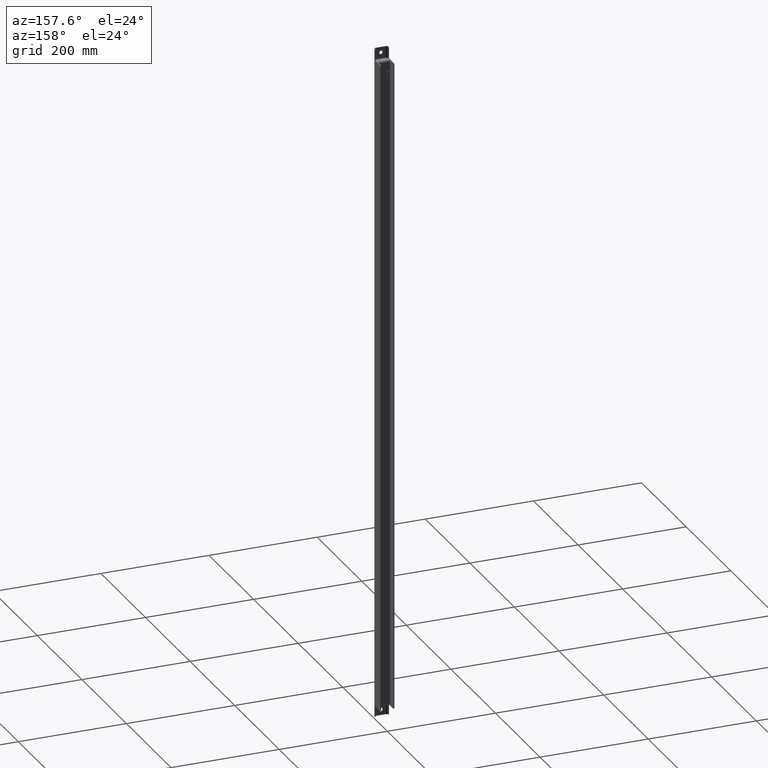
[diagram: clean part render]
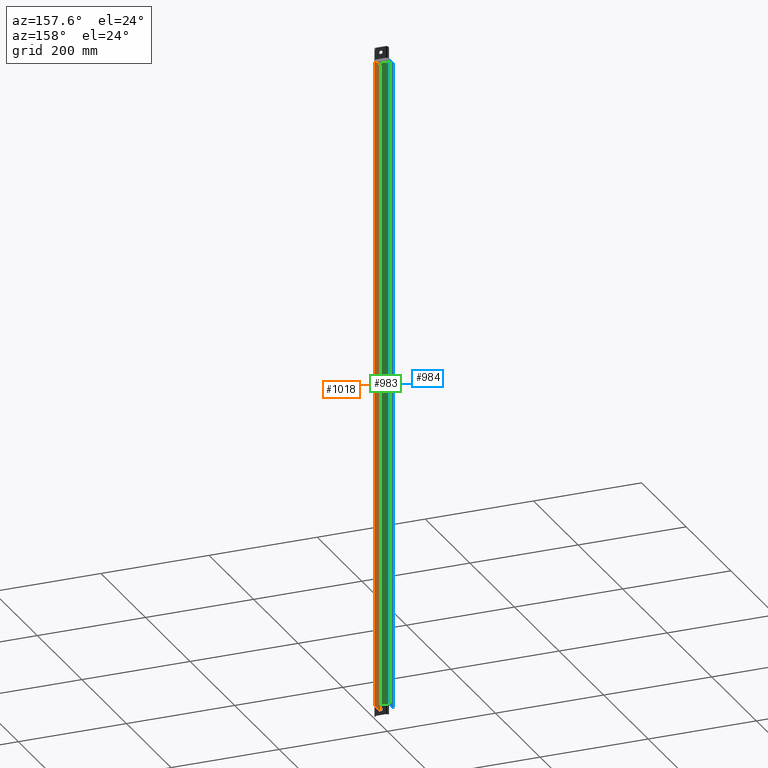
[diagram: same view with three faces highlighted in distinct colors, each labeled with its STEP entity id]
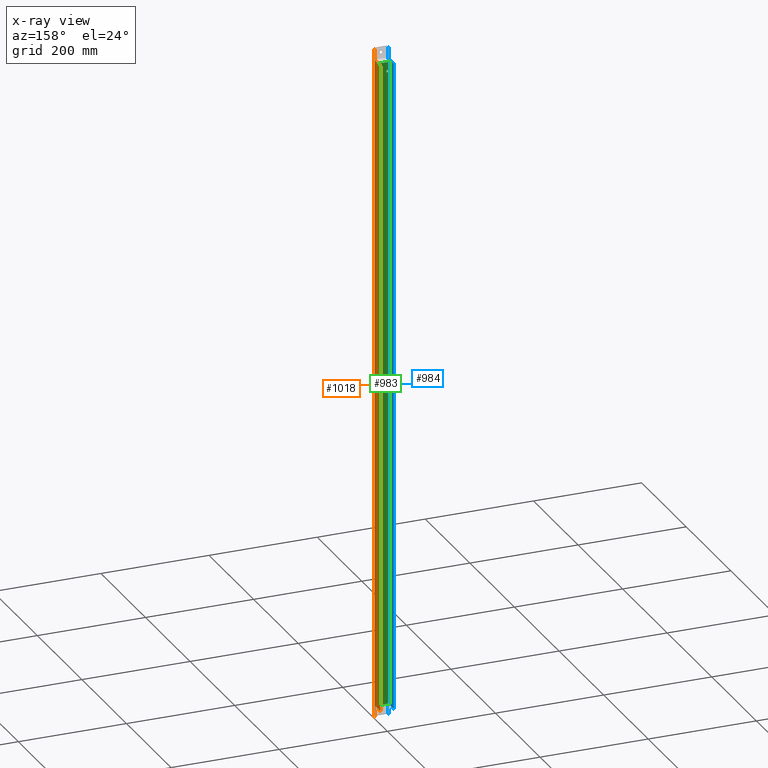
[diagram: x-ray of the same camera — body ghosted, the three highlighted faces saturated]
A machine part, auxiliary view with three faces highlighted in distinct colors.
The next image is the same camera in x-ray (body ghosted, the three faces saturated) — at least one of them is partly hidden behind the body in this view.
Their STEP definitions:

[orange] entity #1018 — the highlighted planar face has unit normal (1, -0, 0).
#90=LINE('',#1720,#178);
#95=LINE('',#1734,#183);
#96=LINE('',#1738,#184);
#97=LINE('',#1742,#185);
#98=LINE('',#1746,#186);
#99=LINE('',#1750,#187);
#178=VECTOR('',#1410,1000.);
#183=VECTOR('',#1429,1000.);
#184=VECTOR('',#1432,1000.);
#185=VECTOR('',#1435,1000.);
#186=VECTOR('',#1438,1000.);
#187=VECTOR('',#1441,1000.);
#456=ORIENTED_EDGE('',*,*,#632,.T.);
#457=ORIENTED_EDGE('',*,*,#635,.T.);
#458=ORIENTED_EDGE('',*,*,#639,.T.);
#459=ORIENTED_EDGE('',*,*,#640,.T.);
#460=ORIENTED_EDGE('',*,*,#641,.T.);
#461=ORIENTED_EDGE('',*,*,#642,.T.);
#462=ORIENTED_EDGE('',*,*,#643,.F.);
#463=ORIENTED_EDGE('',*,*,#644,.T.);
#464=ORIENTED_EDGE('',*,*,#645,.T.);
#465=ORIENTED_EDGE('',*,*,#646,.T.);
#466=ORIENTED_EDGE('',*,*,#647,.T.);
#467=ORIENTED_EDGE('',*,*,#637,.T.);
#632=EDGE_CURVE('',#740,#741,#90,.T.);
#635=EDGE_CURVE('',#741,#742,#802,.T.);
#637=EDGE_CURVE('',#743,#740,#803,.T.);
#639=EDGE_CURVE('',#742,#744,#95,.T.);
#640=EDGE_CURVE('',#744,#745,#804,.T.);
#641=EDGE_CURVE('',#745,#746,#96,.T.);
#642=EDGE_CURVE('',#746,#747,#805,.T.);
#643=EDGE_CURVE('',#748,#747,#97,.T.);
#644=EDGE_CURVE('',#748,#749,#806,.T.);
#645=EDGE_CURVE('',#749,#750,#98,.T.);
#646=EDGE_CURVE('',#750,#751,#807,.T.);
#647=EDGE_CURVE('',#751,#743,#99,.T.);
#740=VERTEX_POINT('',#1717);
#741=VERTEX_POINT('',#1719);
#742=VERTEX_POINT('',#1727);
#743=VERTEX_POINT('',#1731);
#744=VERTEX_POINT('',#1735);
#745=VERTEX_POINT('',#1737);
#746=VERTEX_POINT('',#1739);
#747=VERTEX_POINT('',#1741);
#748=VERTEX_POINT('',#1743);
#749=VERTEX_POINT('',#1745);
#750=VERTEX_POINT('',#1747);
#751=VERTEX_POINT('',#1749);
#802=CIRCLE('',#1137,2.);
#803=CIRCLE('',#1139,2.);
#804=CIRCLE('',#1141,2.);
#805=CIRCLE('',#1142,2.);
#806=CIRCLE('',#1143,2.);
#807=CIRCLE('',#1144,2.);
#864=EDGE_LOOP('',(#456,#457,#458,#459,#460,#461,#462,#463,#464,#465,#466,
#467));
#932=FACE_BOUND('',#864,.T.);
#967=PLANE('',#1140);
#1018=ADVANCED_FACE('',(#932),#967,.T.);
#1137=AXIS2_PLACEMENT_3D('',#1726,#1419,#1420);
#1139=AXIS2_PLACEMENT_3D('',#1730,#1424,#1425);
#1140=AXIS2_PLACEMENT_3D('',#1733,#1427,#1428);
#1141=AXIS2_PLACEMENT_3D('',#1736,#1430,#1431);
#1142=AXIS2_PLACEMENT_3D('',#1740,#1433,#1434);
#1143=AXIS2_PLACEMENT_3D('',#1744,#1436,#1437);
#1144=AXIS2_PLACEMENT_3D('',#1748,#1439,#1440);
#1410=DIRECTION('',(8.93686180177302E-17,1.31838984174237E-16,-1.));
#1419=DIRECTION('',(1.,-4.06163832661068E-16,8.93686180177302E-17));
#1420=DIRECTION('',(8.93686180177302E-17,1.66533453693773E-16,-1.));
#1424=DIRECTION('',(1.,-4.06163832661068E-16,8.93686180177302E-17));
#1425=DIRECTION('',(8.93686180177302E-17,1.66533453693773E-16,-1.));
#1427=DIRECTION('',(1.,-4.06163832661068E-16,8.93686180177302E-17));
#1428=DIRECTION('',(8.93686180177302E-17,1.66533453693773E-16,-1.));
#1429=DIRECTION('',(-8.93686180177302E-17,-1.66533453693773E-16,1.));
#1430=DIRECTION('',(-1.,4.06163832661068E-16,-8.93686180177302E-17));
#1431=DIRECTION('',(8.93686180177302E-17,1.66533453693773E-16,-1.));
#1432=DIRECTION('',(4.06163832661068E-16,1.,1.66533453693773E-16));
#1433=DIRECTION('',(1.,-4.06163832661068E-16,8.93686180177302E-17));
#1434=DIRECTION('',(8.93686180177302E-17,1.66533453693773E-16,-1.));
#1435=DIRECTION('',(8.93686180177302E-17,1.66533453693773E-16,-1.));
#1436=DIRECTION('',(1.,-4.06163832661068E-16,8.93686180177302E-17));
#1437=DIRECTION('',(8.93686180177302E-17,1.66533453693773E-16,-1.));
#1438=DIRECTION('',(-4.06163832661068E-16,-1.,-1.66533453693773E-16));
#1439=DIRECTION('',(-1.,4.06163832661068E-16,-8.93686180177302E-17));
#1440=DIRECTION('',(8.93686180177302E-17,1.66533453693773E-16,-1.));
#1441=DIRECTION('',(-8.93686180177302E-17,-4.2624633981144E-17,1.));
#1717=CARTESIAN_POINT('',(13.,-26.0000000000003,625.));
#1719=CARTESIAN_POINT('',(13.0000000000001,-25.9999999999999,-625.));
#1720=CARTESIAN_POINT('',(13.,-26.0000000000002,-2.28741647717006E-15));
#1726=CARTESIAN_POINT('',(13.0000000000001,-25.9999999999996,-623.));
#1727=CARTESIAN_POINT('',(13.0000000000001,-23.9999999999996,-623.));
#1730=CARTESIAN_POINT('',(13.,-26.0000000000002,623.));
#1731=CARTESIAN_POINT('',(13.,-24.0000000000002,623.));
#1733=CARTESIAN_POINT('',(13.,-28.5000000000002,-2.61701393760565E-15));
#1734=CARTESIAN_POINT('',(13.,-24.0000000000002,-250.));
#1735=CARTESIAN_POINT('',(13.0000000000001,-24.0000000000001,-606.));
#1736=CARTESIAN_POINT('',(13.0000000000001,-21.9999999999996,-606.));
#1737=CARTESIAN_POINT('',(13.0000000000001,-21.9999999999996,-604.));
#1738=CARTESIAN_POINT('',(13.0000000000001,-5.49999999999964,-604.));
#1739=CARTESIAN_POINT('',(12.9999999999999,-1.99999999999975,-604.));
#1740=CARTESIAN_POINT('',(12.9999999999999,-1.99999999999975,-602.));
#1741=CARTESIAN_POINT('',(12.9999999999999,-2.05058192648267E-13,-602.));
#1742=CARTESIAN_POINT('',(12.9999999999998,-2.42861286636753E-13,-375.));
#1743=CARTESIAN_POINT('',(12.9999999999998,-3.22658566531686E-13,602.));
#1744=CARTESIAN_POINT('',(12.9999999999998,-2.00000000000032,602.));
#1745=CARTESIAN_POINT('',(13.,-2.00000000000032,604.));
#1746=CARTESIAN_POINT('',(13.,-5.50000000000021,604.));
#1747=CARTESIAN_POINT('',(13.,-22.0000000000002,604.));
#1748=CARTESIAN_POINT('',(13.,-22.0000000000002,606.));
#1749=CARTESIAN_POINT('',(13.,-24.0000000000002,606.));
#1750=CARTESIAN_POINT('',(13.,-24.0000000000002,750.));

[blue] entity #984 — the highlighted planar face has unit normal (-1, -0, 0).
#42=LINE('',#1559,#130);
#43=LINE('',#1564,#131);
#48=LINE('',#1579,#136);
#50=LINE('',#1585,#138);
#51=LINE('',#1589,#139);
#52=LINE('',#1593,#140);
#53=LINE('',#1597,#141);
#54=LINE('',#1601,#142);
#55=LINE('',#1605,#143);
#56=LINE('',#1609,#144);
#130=VECTOR('',#1230,1000.);
#131=VECTOR('',#1237,1000.);
#136=VECTOR('',#1248,1000.);
#138=VECTOR('',#1256,1000.);
#139=VECTOR('',#1259,1000.);
#140=VECTOR('',#1262,1000.);
#141=VECTOR('',#1265,1000.);
#142=VECTOR('',#1268,1000.);
#143=VECTOR('',#1271,1000.);
#144=VECTOR('',#1274,1000.);
#280=ORIENTED_EDGE('',*,*,#550,.F.);
#281=ORIENTED_EDGE('',*,*,#562,.T.);
#282=ORIENTED_EDGE('',*,*,#560,.F.);
#283=ORIENTED_EDGE('',*,*,#563,.T.);
#284=ORIENTED_EDGE('',*,*,#553,.F.);
#285=ORIENTED_EDGE('',*,*,#564,.F.);
#286=ORIENTED_EDGE('',*,*,#565,.T.);
#287=ORIENTED_EDGE('',*,*,#566,.T.);
#288=ORIENTED_EDGE('',*,*,#567,.T.);
#289=ORIENTED_EDGE('',*,*,#568,.T.);
#290=ORIENTED_EDGE('',*,*,#569,.T.);
#291=ORIENTED_EDGE('',*,*,#570,.T.);
#292=ORIENTED_EDGE('',*,*,#571,.T.);
#293=ORIENTED_EDGE('',*,*,#572,.T.);
#294=ORIENTED_EDGE('',*,*,#573,.T.);
#295=ORIENTED_EDGE('',*,*,#574,.T.);
#296=ORIENTED_EDGE('',*,*,#575,.T.);
#297=ORIENTED_EDGE('',*,*,#576,.F.);
#550=EDGE_CURVE('',#694,#695,#42,.T.);
#553=EDGE_CURVE('',#696,#697,#43,.T.);
#560=EDGE_CURVE('',#702,#703,#48,.T.);
#562=EDGE_CURVE('',#694,#703,#772,.T.);
#563=EDGE_CURVE('',#702,#697,#773,.T.);
#564=EDGE_CURVE('',#704,#696,#50,.T.);
#565=EDGE_CURVE('',#704,#705,#774,.T.);
#566=EDGE_CURVE('',#705,#706,#51,.T.);
#567=EDGE_CURVE('',#706,#707,#775,.T.);
#568=EDGE_CURVE('',#707,#708,#52,.T.);
#569=EDGE_CURVE('',#708,#709,#776,.T.);
#570=EDGE_CURVE('',#709,#710,#53,.T.);
#571=EDGE_CURVE('',#710,#711,#777,.T.);
#572=EDGE_CURVE('',#711,#712,#54,.T.);
#573=EDGE_CURVE('',#712,#713,#778,.T.);
#574=EDGE_CURVE('',#713,#714,#55,.T.);
#575=EDGE_CURVE('',#714,#715,#779,.T.);
#576=EDGE_CURVE('',#695,#715,#56,.T.);
#694=VERTEX_POINT('',#1558);
#695=VERTEX_POINT('',#1560);
#696=VERTEX_POINT('',#1565);
#697=VERTEX_POINT('',#1566);
#702=VERTEX_POINT('',#1578);
#703=VERTEX_POINT('',#1580);
#704=VERTEX_POINT('',#1586);
#705=VERTEX_POINT('',#1588);
#706=VERTEX_POINT('',#1590);
#707=VERTEX_POINT('',#1592);
#708=VERTEX_POINT('',#1594);
#709=VERTEX_POINT('',#1596);
#710=VERTEX_POINT('',#1598);
#711=VERTEX_POINT('',#1600);
#712=VERTEX_POINT('',#1602);
#713=VERTEX_POINT('',#1604);
#714=VERTEX_POINT('',#1606);
#715=VERTEX_POINT('',#1608);
#772=CIRCLE('',#1075,3.);
#773=CIRCLE('',#1076,3.);
#774=CIRCLE('',#1077,2.);
#775=CIRCLE('',#1078,2.);
#776=CIRCLE('',#1079,2.);
#777=CIRCLE('',#1080,2.);
#778=CIRCLE('',#1081,2.);
#779=CIRCLE('',#1082,2.);
#828=EDGE_LOOP('',(#280,#281,#282,#283,#284,#285,#286,#287,#288,#289,#290,
#291,#292,#293,#294,#295,#296,#297));
#896=FACE_BOUND('',#828,.T.);
#953=PLANE('',#1074);
#984=ADVANCED_FACE('',(#896),#953,.F.);
#1074=AXIS2_PLACEMENT_3D('',#1582,#1250,#1251);
#1075=AXIS2_PLACEMENT_3D('',#1583,#1252,#1253);
#1076=AXIS2_PLACEMENT_3D('',#1584,#1254,#1255);
#1077=AXIS2_PLACEMENT_3D('',#1587,#1257,#1258);
#1078=AXIS2_PLACEMENT_3D('',#1591,#1260,#1261);
#1079=AXIS2_PLACEMENT_3D('',#1595,#1263,#1264);
#1080=AXIS2_PLACEMENT_3D('',#1599,#1266,#1267);
#1081=AXIS2_PLACEMENT_3D('',#1603,#1269,#1270);
#1082=AXIS2_PLACEMENT_3D('',#1607,#1272,#1273);
#1230=DIRECTION('',(-2.40952073044229E-16,-1.,8.6117241928882E-15));
#1237=DIRECTION('',(4.06163832661068E-16,1.,1.96182842258948E-15));
#1248=DIRECTION('',(1.21257418434899E-16,3.32494788514936E-15,1.));
#1250=DIRECTION('',(-1.,-3.10099449920508E-15,3.32185076179632E-17));
#1251=DIRECTION('',(3.10099449920508E-15,-1.,-1.66533453693773E-16));
#1252=DIRECTION('',(-1.,-3.10099449920508E-15,3.32185076179632E-17));
#1253=DIRECTION('',(3.10099449920508E-15,-1.,0.));
#1254=DIRECTION('',(-1.,-3.10099449920508E-15,3.32185076179632E-17));
#1255=DIRECTION('',(3.10099449920508E-15,-1.,0.));
#1256=DIRECTION('',(3.32185076179638E-17,-1.43403807347416E-16,1.));
#1257=DIRECTION('',(1.,3.10099449920508E-15,-3.32185076179632E-17));
#1258=DIRECTION('',(3.06328311929254E-15,-1.,-1.66533453693773E-16));
#1259=DIRECTION('',(3.32185076179638E-17,-1.66533453693773E-16,1.));
#1260=DIRECTION('',(-1.,-3.10099449920508E-15,3.32185076179632E-17));
#1261=DIRECTION('',(3.06328311929254E-15,-1.,-1.66533453693773E-16));
#1262=DIRECTION('',(-3.10099449920508E-15,1.,1.66533453693773E-16));
#1263=DIRECTION('',(1.,3.10099449920508E-15,-3.32185076179632E-17));
#1264=DIRECTION('',(3.06328311929254E-15,-1.,-1.66533453693773E-16));
#1265=DIRECTION('',(3.32185076179638E-17,-1.66533453693773E-16,1.));
#1266=DIRECTION('',(1.,3.10099449920508E-15,-3.32185076179632E-17));
#1267=DIRECTION('',(3.06328311929255E-15,-1.,-1.66533453693773E-16));
#1268=DIRECTION('',(3.10099449920508E-15,-1.,-1.66533453693773E-16));
#1269=DIRECTION('',(-1.,-3.10099449920508E-15,3.32185076179632E-17));
#1270=DIRECTION('',(3.06328311929254E-15,-1.,-1.66533453693773E-16));
#1271=DIRECTION('',(3.32185076179639E-17,-4.2624633981144E-17,1.));
#1272=DIRECTION('',(1.,3.10099449920508E-15,-3.32185076179632E-17));
#1273=DIRECTION('',(3.06328311929254E-15,-1.,-1.66533453693773E-16));
#1274=DIRECTION('',(3.32185076179638E-17,-1.43403807347416E-16,1.));
#1558=CARTESIAN_POINT('',(-11.5,-19.4999999999985,603.5));
#1559=CARTESIAN_POINT('',(-11.4999999999999,-16.4999999999967,603.5));
#1560=CARTESIAN_POINT('',(-11.4999999999999,-26.0000000000002,603.5));
#1564=CARTESIAN_POINT('',(-11.4999999999999,-16.4999999999957,-603.5));
#1565=CARTESIAN_POINT('',(-11.4999999999999,-25.9999999999997,-603.5));
#1566=CARTESIAN_POINT('',(-11.4999999999999,-19.4999999999987,-603.5));
#1578=CARTESIAN_POINT('',(-11.4999999999999,-16.4999999999987,-600.5));
#1579=CARTESIAN_POINT('',(-11.4999999999999,-16.4999999999978,350.5));
#1580=CARTESIAN_POINT('',(-11.4999999999999,-16.4999999999969,600.5));
#1582=CARTESIAN_POINT('',(-11.4999999999999,-28.5000000000002,-3.53821137294295E-15));
#1583=CARTESIAN_POINT('',(-11.5,-19.4999999999986,600.5));
#1584=CARTESIAN_POINT('',(-11.4999999999999,-19.4999999999987,-600.5));
#1585=CARTESIAN_POINT('',(-11.4999999999999,-26.0000000000002,-375.));
#1586=CARTESIAN_POINT('',(-11.4999999999999,-25.9999999999999,-625.));
#1587=CARTESIAN_POINT('',(-11.4999999999999,-25.9999999999997,-623.));
#1588=CARTESIAN_POINT('',(-11.4999999999999,-23.9999999999997,-623.));
#1589=CARTESIAN_POINT('',(-11.4999999999999,-24.0000000000002,125.));
#1590=CARTESIAN_POINT('',(-11.5,-24.0000000000001,-606.));
#1591=CARTESIAN_POINT('',(-11.4999999999999,-21.9999999999997,-606.));
#1592=CARTESIAN_POINT('',(-11.4999999999999,-21.9999999999997,-604.));
#1593=CARTESIAN_POINT('',(-11.4999999999999,-28.4999999999997,-604.));
#1594=CARTESIAN_POINT('',(-11.4999999999999,-1.99999999999975,-604.));
#1595=CARTESIAN_POINT('',(-11.5000000000001,-1.99999999999978,-602.));
#1596=CARTESIAN_POINT('',(-11.5000000000001,2.16840434497101E-13,-602.));
#1597=CARTESIAN_POINT('',(-11.5000000000002,-3.33066907387547E-13,2.92058062013812E-16));
#1598=CARTESIAN_POINT('',(-11.5000000000002,-4.33320046511198E-13,602.));
#1599=CARTESIAN_POINT('',(-11.5000000000001,-2.00000000000035,602.));
#1600=CARTESIAN_POINT('',(-11.5000000000001,-2.00000000000035,604.));
#1601=CARTESIAN_POINT('',(-11.4999999999999,-28.5000000000003,604.));
#1602=CARTESIAN_POINT('',(-11.4999999999999,-22.0000000000002,604.));
#1603=CARTESIAN_POINT('',(-11.4999999999999,-22.0000000000002,606.));
#1604=CARTESIAN_POINT('',(-11.4999999999999,-24.0000000000002,606.));
#1605=CARTESIAN_POINT('',(-11.4999999999999,-24.0000000000002,375.));
#1606=CARTESIAN_POINT('',(-11.4999999999999,-24.0000000000002,623.));
#1607=CARTESIAN_POINT('',(-11.4999999999999,-26.0000000000002,623.));
#1608=CARTESIAN_POINT('',(-11.4999999999999,-26.0000000000002,625.));
#1609=CARTESIAN_POINT('',(-11.4999999999999,-26.0000000000002,125.));

[green] entity #983 — the highlighted planar face has unit normal (0, 1, -0).
#46=LINE('',#1574,#134);
#47=LINE('',#1577,#135);
#48=LINE('',#1579,#136);
#49=LINE('',#1581,#137);
#134=VECTOR('',#1246,1000.);
#135=VECTOR('',#1247,1000.);
#136=VECTOR('',#1248,1000.);
#137=VECTOR('',#1249,1000.);
#274=ORIENTED_EDGE('',*,*,#513,.F.);
#275=ORIENTED_EDGE('',*,*,#515,.F.);
#276=ORIENTED_EDGE('',*,*,#558,.T.);
#277=ORIENTED_EDGE('',*,*,#559,.T.);
#278=ORIENTED_EDGE('',*,*,#560,.T.);
#279=ORIENTED_EDGE('',*,*,#561,.T.);
#513=EDGE_CURVE('',#657,#657,#753,.T.);
#515=EDGE_CURVE('',#659,#659,#755,.T.);
#558=EDGE_CURVE('',#700,#701,#46,.T.);
#559=EDGE_CURVE('',#701,#702,#47,.T.);
#560=EDGE_CURVE('',#702,#703,#48,.T.);
#561=EDGE_CURVE('',#703,#700,#49,.T.);
#657=VERTEX_POINT('',#1478);
#659=VERTEX_POINT('',#1484);
#700=VERTEX_POINT('',#1575);
#701=VERTEX_POINT('',#1576);
#702=VERTEX_POINT('',#1578);
#703=VERTEX_POINT('',#1580);
#753=CIRCLE('',#1046,2.);
#755=CIRCLE('',#1050,2.);
#825=EDGE_LOOP('',(#274));
#826=EDGE_LOOP('',(#275));
#827=EDGE_LOOP('',(#276,#277,#278,#279));
#893=FACE_BOUND('',#825,.T.);
#894=FACE_BOUND('',#826,.T.);
#895=FACE_BOUND('',#827,.T.);
#952=PLANE('',#1073);
#983=ADVANCED_FACE('',(#893,#894,#895),#952,.T.);
#1046=AXIS2_PLACEMENT_3D('',#1477,#1164,#1165);
#1050=AXIS2_PLACEMENT_3D('',#1483,#1172,#1173);
#1073=AXIS2_PLACEMENT_3D('',#1573,#1244,#1245);
#1164=DIRECTION('',(4.06163832661068E-16,1.,-3.32698173895069E-15));
#1165=DIRECTION('',(9.21833731195405E-17,-3.32698173895069E-15,-1.));
#1172=DIRECTION('',(4.06163832661068E-16,1.,-3.32698173895069E-15));
#1173=DIRECTION('',(9.21833731195405E-17,-3.32698173895069E-15,-1.));
#1244=DIRECTION('',(4.06163832661068E-16,1.,-3.32494788514936E-15));
#1245=DIRECTION('',(-1.,4.06163832661068E-16,6.76398658185478E-32));
#1246=DIRECTION('',(-1.21257418434899E-16,-3.32494788514936E-15,-1.));
#1247=DIRECTION('',(-1.,4.06163832661068E-16,6.76398658185534E-32));
#1248=DIRECTION('',(1.21257418434899E-16,3.32494788514936E-15,1.));
#1249=DIRECTION('',(1.,-4.06163832661068E-16,-6.76398658185534E-32));
#1477=CARTESIAN_POINT('',(7.,-16.4999999999986,583.5));
#1478=CARTESIAN_POINT('',(7.,-16.4999999999986,581.5));
#1483=CARTESIAN_POINT('',(-7.,-16.4999999999986,583.5));
#1484=CARTESIAN_POINT('',(-7.,-16.4999999999986,581.5));
#1573=CARTESIAN_POINT('',(4.66701312594012E-15,-16.4999999999989,-3.78058567638503E-14));
#1574=CARTESIAN_POINT('',(11.5,-16.4999999999977,350.5));
#1575=CARTESIAN_POINT('',(11.5,-16.4999999999986,600.5));
#1576=CARTESIAN_POINT('',(11.5,-16.4999999999987,-600.5));
#1577=CARTESIAN_POINT('',(-10.,-16.4999999999987,-600.5));
#1578=CARTESIAN_POINT('',(-11.4999999999999,-16.4999999999987,-600.5));
#1579=CARTESIAN_POINT('',(-11.4999999999999,-16.4999999999978,350.5));
#1580=CARTESIAN_POINT('',(-11.4999999999999,-16.4999999999969,600.5));
#1581=CARTESIAN_POINT('',(9.99999999999997,-16.4999999999986,600.5));